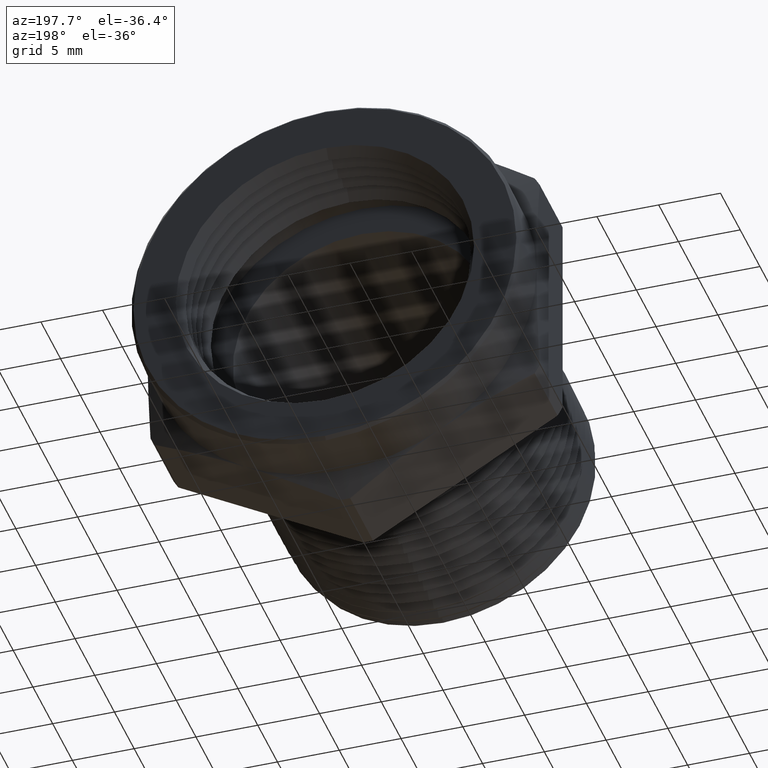
[diagram: clean part render]
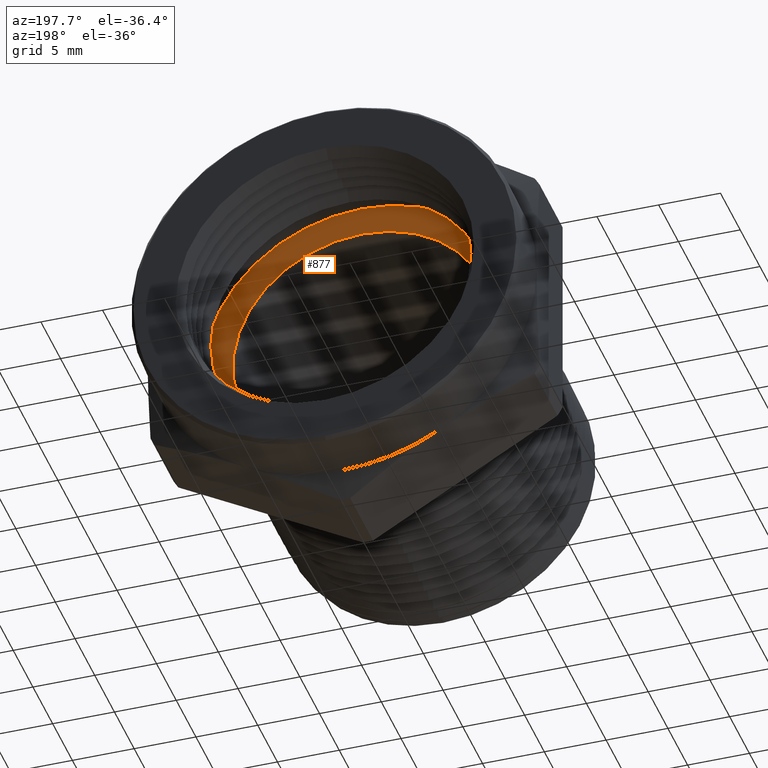
[diagram: same view with one face highlighted and labeled with its STEP entity id]
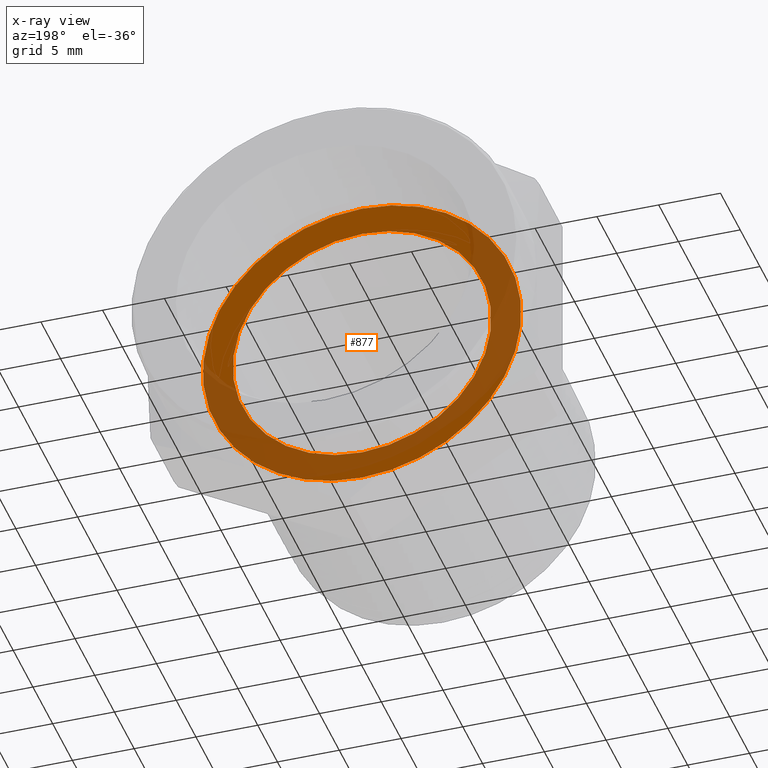
[diagram: x-ray of the same camera — body ghosted, the highlighted face saturated]
A machine part, auxiliary view. The second image highlights one B-rep face of the part: STEP entity #877.
The next image is the same camera in x-ray: the body ghosted, the highlighted face saturated — about 51% of this face is hidden behind the body in this view.
In plain terms, the highlighted planar face has unit normal (0, 1, 0).
Its self-contained STEP definition (entity closure, byte-faithful):
#71 = VERTEX_POINT ( 'NONE', #1211 ) ;
#72 = EDGE_CURVE ( 'NONE', #101, #71, #1206, .T. ) ;
#101 = VERTEX_POINT ( 'NONE', #1282 ) ;
#361 = VERTEX_POINT ( 'NONE', #1783 ) ;
#363 = EDGE_CURVE ( 'NONE', #361, #364, #1780, .T. ) ;
#364 = VERTEX_POINT ( 'NONE', #1775 ) ;
#843 = EDGE_CURVE ( 'NONE', #71, #101, #2728, .T. ) ;
#876 = EDGE_CURVE ( 'NONE', #364, #361, #2756, .T. ) ;
#877 = ADVANCED_FACE ( 'NONE', ( #2747, #2746 ), #2745, .T. ) ;
#878 = EDGE_LOOP ( 'NONE', ( #879, #880 ) ) ;
#879 = ORIENTED_EDGE ( 'NONE', *, *, #843, .T. ) ;
#880 = ORIENTED_EDGE ( 'NONE', *, *, #72, .T. ) ;
#881 = EDGE_LOOP ( 'NONE', ( #882, #883 ) ) ;
#882 = ORIENTED_EDGE ( 'NONE', *, *, #876, .F. ) ;
#883 = ORIENTED_EDGE ( 'NONE', *, *, #363, .F. ) ;
#1206 = CIRCLE ( 'NONE', #1267, 0.4119999999999998700 ) ;
#1211 = CARTESIAN_POINT ( 'NONE',  ( 0.0000000000000000000, 0.8089999999999999400, -0.4119999999999998700 ) ) ;
#1264 = DIRECTION ( 'NONE',  ( 0.0000000000000000000, 0.0000000000000000000, -1.000000000000000000 ) ) ;
#1265 = DIRECTION ( 'NONE',  ( -0.0000000000000000000, -1.000000000000000000, -0.0000000000000000000 ) ) ;
#1266 = CARTESIAN_POINT ( 'NONE',  ( 0.0000000000000000000, 0.8089999999999999400, 0.0000000000000000000 ) ) ;
#1267 = AXIS2_PLACEMENT_3D ( 'NONE', #1266, #1265, #1264 ) ;
#1282 = CARTESIAN_POINT ( 'NONE',  ( 5.045544812487094500E-017, 0.8089999999999999400, 0.4119999999999998700 ) ) ;
#1775 = CARTESIAN_POINT ( 'NONE',  ( 0.0000000000000000000, 0.8089999999999999400, -0.5071499999999999900 ) ) ;
#1776 = DIRECTION ( 'NONE',  ( 0.0000000000000000000, 0.0000000000000000000, -1.000000000000000000 ) ) ;
#1777 = DIRECTION ( 'NONE',  ( -0.0000000000000000000, -1.000000000000000000, -0.0000000000000000000 ) ) ;
#1778 = CARTESIAN_POINT ( 'NONE',  ( 0.0000000000000000000, 0.8089999999999999400, 0.0000000000000000000 ) ) ;
#1779 = AXIS2_PLACEMENT_3D ( 'NONE', #1778, #1777, #1776 ) ;
#1780 = CIRCLE ( 'NONE', #1779, 0.5071499999999999900 ) ;
#1783 = CARTESIAN_POINT ( 'NONE',  ( 6.210796241875801000E-017, 0.8089999999999999400, 0.5071499999999999900 ) ) ;
#2720 = DIRECTION ( 'NONE',  ( 0.0000000000000000000, 0.0000000000000000000, -1.000000000000000000 ) ) ;
#2721 = DIRECTION ( 'NONE',  ( -0.0000000000000000000, -1.000000000000000000, -0.0000000000000000000 ) ) ;
#2722 = CARTESIAN_POINT ( 'NONE',  ( 0.0000000000000000000, 0.8089999999999999400, 0.0000000000000000000 ) ) ;
#2723 = AXIS2_PLACEMENT_3D ( 'NONE', #2722, #2721, #2720 ) ;
#2728 = CIRCLE ( 'NONE', #2723, 0.4119999999999998700 ) ;
#2741 = DIRECTION ( 'NONE',  ( 0.0000000000000000000, -0.0000000000000000000, 1.000000000000000000 ) ) ;
#2742 = DIRECTION ( 'NONE',  ( 0.0000000000000000000, 1.000000000000000000, 0.0000000000000000000 ) ) ;
#2743 = AXIS2_PLACEMENT_3D ( 'NONE', #2744, #2742, #2741 ) ;
#2744 = CARTESIAN_POINT ( 'NONE',  ( 0.5071499999999999900, 0.8089999999999999400, 0.0000000000000000000 ) ) ;
#2745 = PLANE ( 'NONE',  #2743 ) ;
#2746 = FACE_OUTER_BOUND ( 'NONE', #881, .T. ) ;
#2747 = FACE_BOUND ( 'NONE', #878, .T. ) ;
#2748 = DIRECTION ( 'NONE',  ( 0.0000000000000000000, 0.0000000000000000000, -1.000000000000000000 ) ) ;
#2749 = DIRECTION ( 'NONE',  ( -0.0000000000000000000, -1.000000000000000000, -0.0000000000000000000 ) ) ;
#2750 = CARTESIAN_POINT ( 'NONE',  ( 0.0000000000000000000, 0.8089999999999999400, 0.0000000000000000000 ) ) ;
#2751 = AXIS2_PLACEMENT_3D ( 'NONE', #2750, #2749, #2748 ) ;
#2756 = CIRCLE ( 'NONE', #2751, 0.5071499999999999900 ) ;